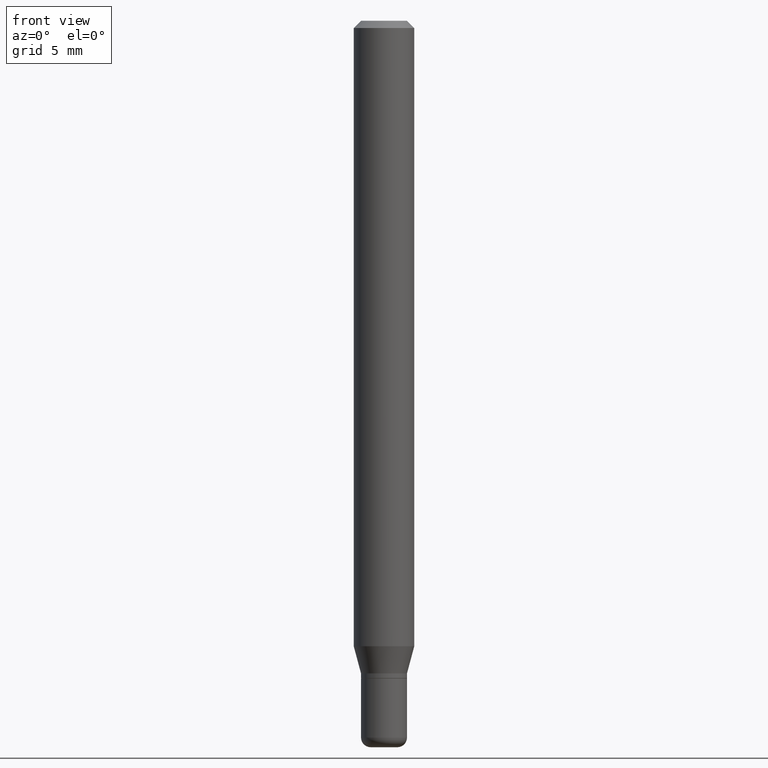
[diagram: clean part render]
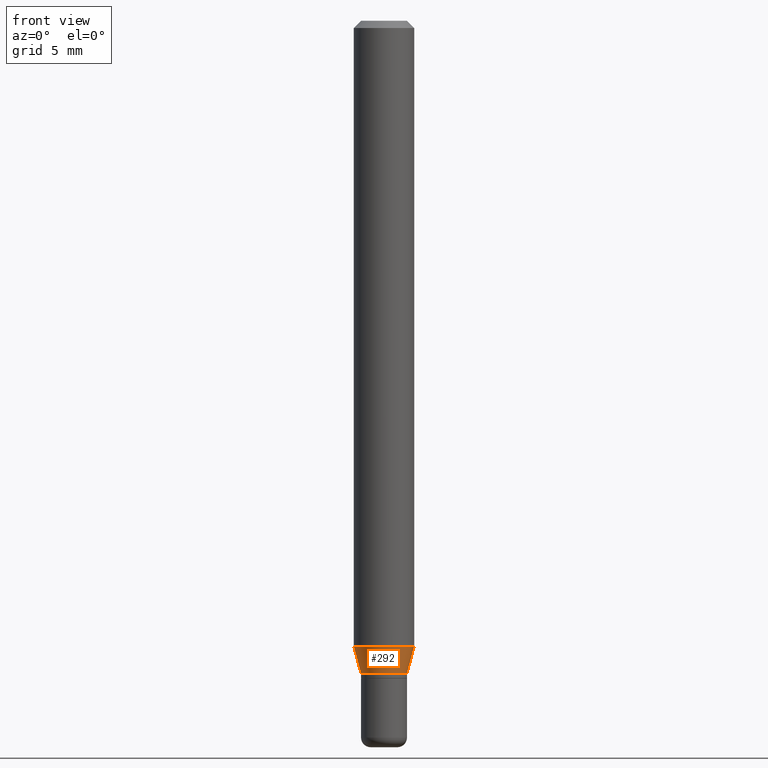
[diagram: same view with one face highlighted and labeled with its STEP entity id]
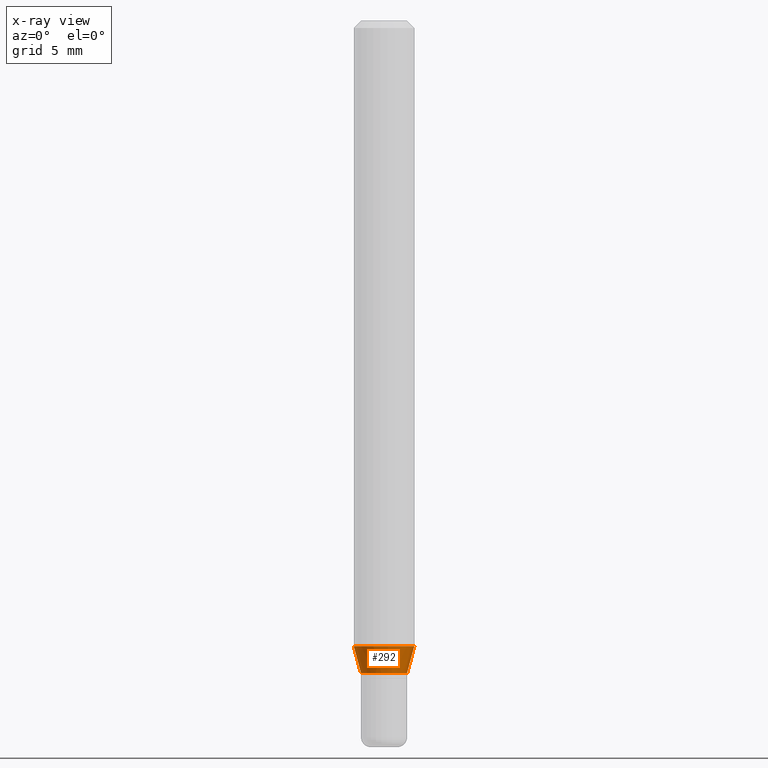
[diagram: x-ray of the same camera — body ghosted, the highlighted face saturated]
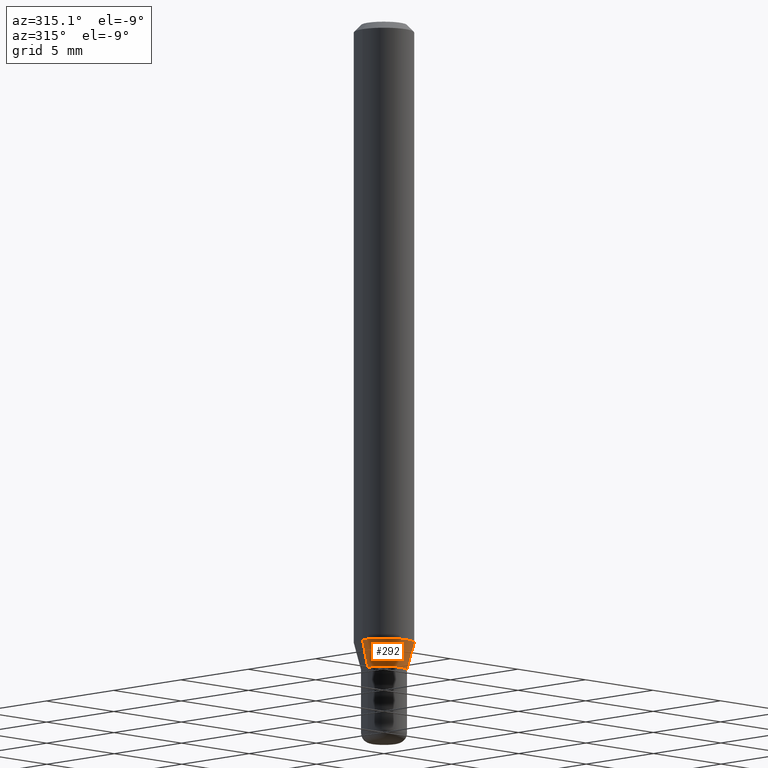
[diagram: same view with one face highlighted and labeled with its STEP entity id]
A machine part, front view. The second image highlights one B-rep face of the part: STEP entity #292.
The next image is the same camera in x-ray: the body ghosted, the highlighted face saturated — about 0% of this face is hidden behind the body in this view.
A second angle (auxiliary view) of the same face is appended — the face is thin or edge-on in the first view.
In plain terms, the highlighted conical surface has half-angle 15 deg.
Its self-contained STEP definition (entity closure, byte-faithful):
#7 = VECTOR ( 'NONE', #117, 39.37007874015748143 ) ;
#18 = VERTEX_POINT ( 'NONE', #220 ) ;
#48 = ORIENTED_EDGE ( 'NONE', *, *, #377, .T. ) ;
#62 = VERTEX_POINT ( 'NONE', #205 ) ;
#69 = VECTOR ( 'NONE', #492, 39.37007874015748143 ) ;
#76 = CARTESIAN_POINT ( 'NONE',  ( 3.158370008839356445E-29, -4.509315317837521367E-15, -1.291519237886467275 ) ) ;
#109 = VERTEX_POINT ( 'NONE', #132 ) ;
#116 = VERTEX_POINT ( 'NONE', #287 ) ;
#117 = DIRECTION ( 'NONE',  ( -0.2588190451025216277, 5.211531920934551831E-15, 0.9659258262890679791 ) ) ;
#132 = CARTESIAN_POINT ( 'NONE',  ( 0.06250000000000000000, -4.945750485192912248E-15, -1.291519237886467275 ) ) ;
#150 = CARTESIAN_POINT ( 'NONE',  ( 3.295269216334471631E-29, -4.704771104091139078E-15, -1.347500000000000142 ) ) ;
#159 = DIRECTION ( 'NONE',  ( 1.000000000000000000, -6.982962677686262766E-15, 0.000000000000000000 ) ) ;
#191 = CARTESIAN_POINT ( 'NONE',  ( 3.295269216334471631E-29, -4.704771104091139078E-15, -1.347500000000000142 ) ) ;
#205 = CARTESIAN_POINT ( 'NONE',  ( -0.04750000000000002137, -4.216244706296274379E-15, -1.347500000000000142 ) ) ;
#208 = EDGE_LOOP ( 'NONE', ( #483, #48, #289, #498 ) ) ;
#220 = CARTESIAN_POINT ( 'NONE',  ( -0.06250000000000000000, -4.065226107987458751E-15, -1.291519237886467275 ) ) ;
#222 = AXIS2_PLACEMENT_3D ( 'NONE', #191, #272, #315 ) ;
#234 = CONICAL_SURFACE ( 'NONE', #369, 0.04750000000000002137, 0.2617993877991502960 ) ;
#272 = DIRECTION ( 'NONE',  ( -2.445468806185136597E-29, 3.491481338843145583E-15, 1.000000000000000000 ) ) ;
#287 = CARTESIAN_POINT ( 'NONE',  ( 0.04750000000000002137, -5.036461831281236589E-15, -1.347500000000000142 ) ) ;
#288 = LINE ( 'NONE', #455, #69 ) ;
#289 = ORIENTED_EDGE ( 'NONE', *, *, #499, .T. ) ;
#292 = ADVANCED_FACE ( 'NONE', ( #437 ), #234, .T. ) ;
#307 = EDGE_CURVE ( 'NONE', #18, #109, #453, .T. ) ;
#308 = DIRECTION ( 'NONE',  ( -2.445468806185136597E-29, 3.491481338843145583E-15, 1.000000000000000000 ) ) ;
#313 = LINE ( 'NONE', #474, #7 ) ;
#315 = DIRECTION ( 'NONE',  ( 1.000000000000000000, -6.982962677686258033E-15, 0.000000000000000000 ) ) ;
#329 = AXIS2_PLACEMENT_3D ( 'NONE', #76, #348, #159 ) ;
#344 = CIRCLE ( 'NONE', #222, 0.04750000000000002137 ) ;
#348 = DIRECTION ( 'NONE',  ( -2.445468806185136597E-29, 3.491481338843145583E-15, 1.000000000000000000 ) ) ;
#369 = AXIS2_PLACEMENT_3D ( 'NONE', #150, #308, #469 ) ;
#377 = EDGE_CURVE ( 'NONE', #62, #116, #344, .T. ) ;
#384 = EDGE_CURVE ( 'NONE', #62, #18, #313, .T. ) ;
#437 = FACE_OUTER_BOUND ( 'NONE', #208, .T. ) ;
#453 = CIRCLE ( 'NONE', #329, 0.06250000000000000000 ) ;
#455 = CARTESIAN_POINT ( 'NONE',  ( 0.04750000000000002137, -5.036461831281236589E-15, -1.347500000000000142 ) ) ;
#469 = DIRECTION ( 'NONE',  ( 1.000000000000000000, -6.982962677686258033E-15, 0.000000000000000000 ) ) ;
#474 = CARTESIAN_POINT ( 'NONE',  ( -0.04750000000000002137, -4.367263304605090795E-15, -1.347500000000000142 ) ) ;
#483 = ORIENTED_EDGE ( 'NONE', *, *, #384, .F. ) ;
#492 = DIRECTION ( 'NONE',  ( 0.2588190451025216277, 1.565188264969619995E-15, 0.9659258262890679791 ) ) ;
#498 = ORIENTED_EDGE ( 'NONE', *, *, #307, .F. ) ;
#499 = EDGE_CURVE ( 'NONE', #116, #109, #288, .T. ) ;